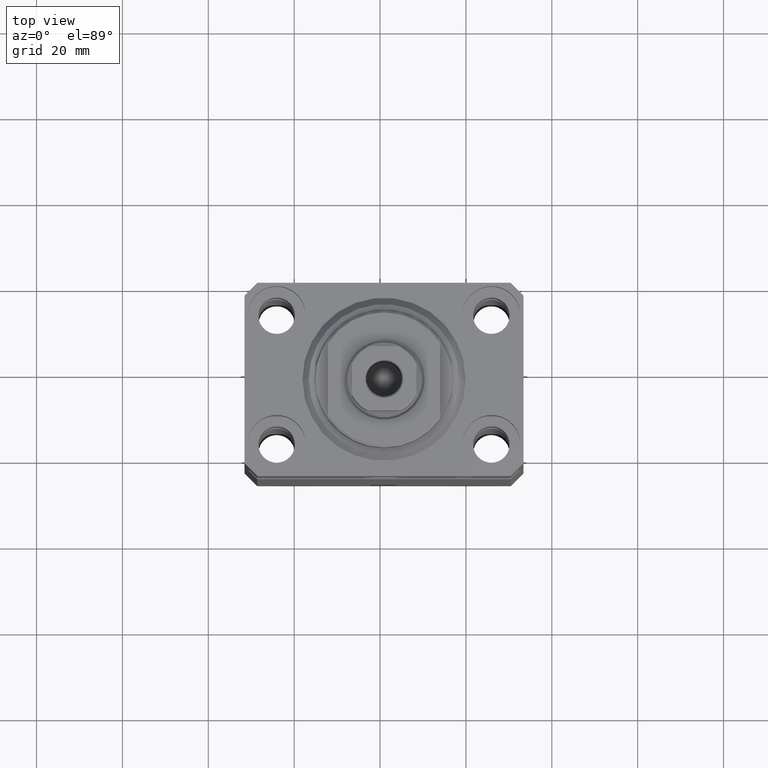
[diagram: clean part render]
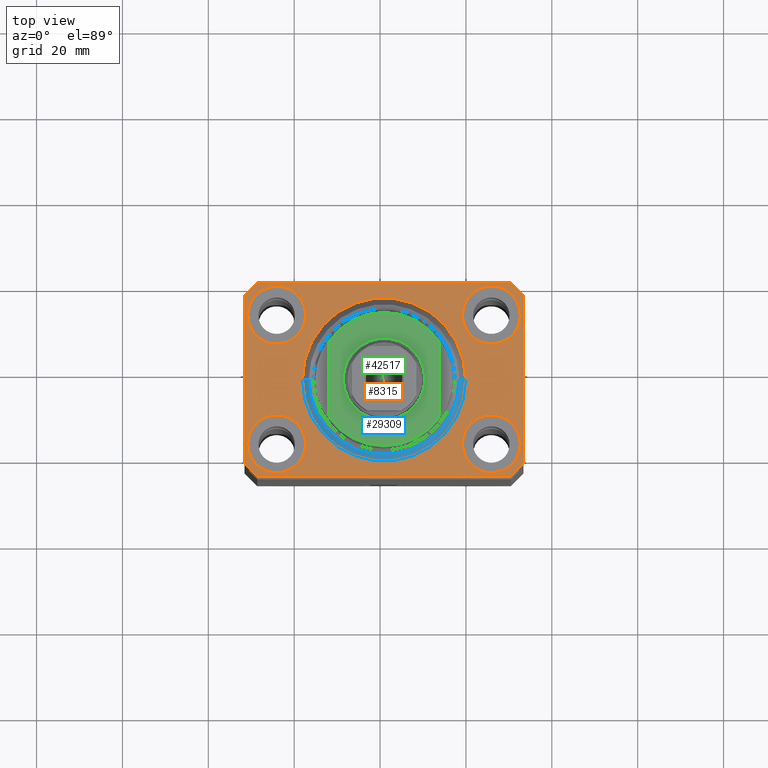
[diagram: same view with three faces highlighted in distinct colors, each labeled with its STEP entity id]
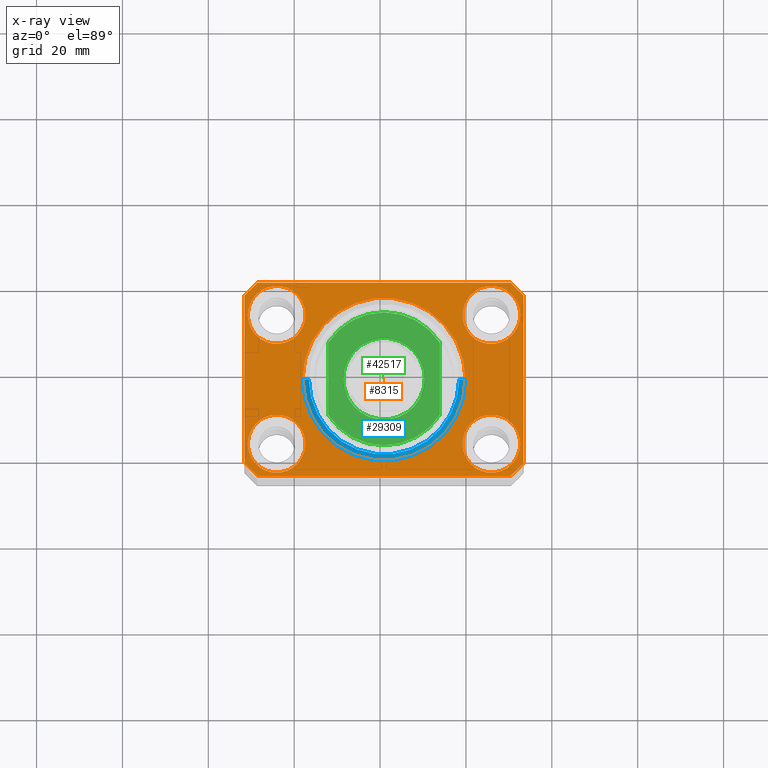
[diagram: x-ray of the same camera — body ghosted, the three highlighted faces saturated]
A machine part, top view with three faces highlighted in distinct colors.
The next image is the same camera in x-ray (body ghosted, the three faces saturated) — at least one of them is partly hidden behind the body in this view.
Their STEP definitions:

[orange] entity #8315 — the highlighted planar face has unit normal (0, 0, 1).
#374 = CARTESIAN_POINT ( 'NONE',  ( 18.25000000004154543, 15.00000000000000888, 0.000000000000000000 ) ) ;
#878 = PLANE ( 'NONE',  #29296 ) ;
#899 = VERTEX_POINT ( 'NONE', #16742 ) ;
#1129 = LINE ( 'NONE', #1579, #42418 ) ;
#1345 = CARTESIAN_POINT ( 'NONE',  ( -25.00000000000000355, -15.00000000000000000, 0.000000000000000000 ) ) ;
#1556 = CARTESIAN_POINT ( 'NONE',  ( 32.49999999999702993, 19.49999999999945999, 0.000000000000000000 ) ) ;
#1579 = CARTESIAN_POINT ( 'NONE',  ( 29.49999999999650413, -22.49999999999949196, 0.000000000000000000 ) ) ;
#1604 = ORIENTED_EDGE ( 'NONE', *, *, #29513, .T. ) ;
#2960 = CIRCLE ( 'NONE', #25236, 6.749999999977465137 ) ;
#3051 = ORIENTED_EDGE ( 'NONE', *, *, #4769, .F. ) ;
#3131 = AXIS2_PLACEMENT_3D ( 'NONE', #27432, #13244, #26976 ) ;
#3363 = ORIENTED_EDGE ( 'NONE', *, *, #42506, .F. ) ;
#3471 = CARTESIAN_POINT ( 'NONE',  ( -32.49999999999650413, -19.49999999999949907, 0.000000000000000000 ) ) ;
#4436 = VERTEX_POINT ( 'NONE', #10994 ) ;
#4668 = VERTEX_POINT ( 'NONE', #12993 ) ;
#4769 = EDGE_CURVE ( 'NONE', #33696, #39309, #29903, .T. ) ;
#5095 = AXIS2_PLACEMENT_3D ( 'NONE', #12685, #19888, #30455 ) ;
#5660 = EDGE_CURVE ( 'NONE', #4436, #15289, #26344, .T. ) ;
#5785 = CARTESIAN_POINT ( 'NONE',  ( 24.99999999999999645, 15.00000000000000888, 0.000000000000000000 ) ) ;
#6330 = CARTESIAN_POINT ( 'NONE',  ( 29.49999999999707967, 22.49999999999951328, 0.000000000000000000 ) ) ;
#6478 = CARTESIAN_POINT ( 'NONE',  ( -29.49999999999650413, 22.49999999999949907, 0.000000000000000000 ) ) ;
#6938 = DIRECTION ( 'NONE',  ( 1.000000000000000000, 0.000000000000000000, 0.000000000000000000 ) ) ;
#6960 = FACE_BOUND ( 'NONE', #21486, .T. ) ;
#7033 = EDGE_CURVE ( 'NONE', #18398, #40301, #12738, .T. ) ;
#7097 = ORIENTED_EDGE ( 'NONE', *, *, #10744, .F. ) ;
#7403 = VERTEX_POINT ( 'NONE', #33160 ) ;
#7624 = FACE_BOUND ( 'NONE', #29023, .T. ) ;
#7796 = CIRCLE ( 'NONE', #22175, 19.00000000000000000 ) ;
#7830 = VECTOR ( 'NONE', #18246, 1000.000000000000000 ) ;
#7873 = VERTEX_POINT ( 'NONE', #6330 ) ;
#7882 = CARTESIAN_POINT ( 'NONE',  ( 31.74999999997746869, -15.00000000000000000, 0.000000000000000000 ) ) ;
#8315 = ADVANCED_FACE ( 'NONE', ( #21130, #31252, #37736, #6960, #7624, #31478 ), #878, .T. ) ;
#8385 = DIRECTION ( 'NONE',  ( -1.000000000000000000, -2.352167425053553784E-16, 0.000000000000000000 ) ) ;
#9293 = DIRECTION ( 'NONE',  ( 0.000000000000000000, 0.000000000000000000, 1.000000000000000000 ) ) ;
#9705 = EDGE_CURVE ( 'NONE', #15289, #4436, #38614, .T. ) ;
#9853 = LINE ( 'NONE', #19996, #15525 ) ;
#10305 = DIRECTION ( 'NONE',  ( 0.000000000000000000, 0.000000000000000000, 1.000000000000000000 ) ) ;
#10325 = CIRCLE ( 'NONE', #3131, 6.750000000022533087 ) ;
#10557 = DIRECTION ( 'NONE',  ( 0.000000000000000000, 0.000000000000000000, 1.000000000000000000 ) ) ;
#10596 = CARTESIAN_POINT ( 'NONE',  ( 25.00000000000000355, -15.00000000000000000, 0.000000000000000000 ) ) ;
#10744 = EDGE_CURVE ( 'NONE', #24683, #21532, #7796, .T. ) ;
#10834 = EDGE_CURVE ( 'NONE', #43496, #39570, #35783, .T. ) ;
#10994 = CARTESIAN_POINT ( 'NONE',  ( -31.75000000004154899, -15.00000000000000000, 0.000000000000000000 ) ) ;
#11122 = ORIENTED_EDGE ( 'NONE', *, *, #10834, .F. ) ;
#12232 = ORIENTED_EDGE ( 'NONE', *, *, #20027, .T. ) ;
#12469 = EDGE_CURVE ( 'NONE', #40301, #14773, #34860, .T. ) ;
#12612 = VERTEX_POINT ( 'NONE', #36192 ) ;
#12685 = CARTESIAN_POINT ( 'NONE',  ( 24.99999999999999645, 15.00000000000000888, 0.000000000000000000 ) ) ;
#12738 = LINE ( 'NONE', #42837, #35690 ) ;
#12993 = CARTESIAN_POINT ( 'NONE',  ( -29.49999999999650413, -22.49999999999949907, 0.000000000000000000 ) ) ;
#13178 = EDGE_LOOP ( 'NONE', ( #16873, #23264 ) ) ;
#13244 = DIRECTION ( 'NONE',  ( 0.000000000000000000, 0.000000000000000000, 1.000000000000000000 ) ) ;
#13506 = CARTESIAN_POINT ( 'NONE',  ( -31.75000000002253842, 15.00000000000000000, 0.000000000000000000 ) ) ;
#13566 = ORIENTED_EDGE ( 'NONE', *, *, #14859, .T. ) ;
#13934 = EDGE_CURVE ( 'NONE', #12612, #36858, #2960, .T. ) ;
#14256 = LINE ( 'NONE', #3471, #24036 ) ;
#14404 = DIRECTION ( 'NONE',  ( 1.000000000000000000, 0.000000000000000000, 0.000000000000000000 ) ) ;
#14591 = DIRECTION ( 'NONE',  ( 1.000000000000000000, 0.000000000000000000, 0.000000000000000000 ) ) ;
#14773 = VERTEX_POINT ( 'NONE', #30623 ) ;
#14859 = EDGE_CURVE ( 'NONE', #16594, #899, #1129, .T. ) ;
#14945 = EDGE_CURVE ( 'NONE', #21532, #24683, #26668, .T. ) ;
#15194 = AXIS2_PLACEMENT_3D ( 'NONE', #10596, #21168, #14404 ) ;
#15256 = DIRECTION ( 'NONE',  ( -0.7071067811865352493, 0.7071067811865597852, 0.000000000000000000 ) ) ;
#15289 = VERTEX_POINT ( 'NONE', #18851 ) ;
#15525 = VECTOR ( 'NONE', #37481, 1000.000000000000000 ) ;
#15536 = EDGE_CURVE ( 'NONE', #7873, #18398, #42964, .T. ) ;
#15886 = DIRECTION ( 'NONE',  ( 1.000000000000000000, 1.176083712526788232E-16, 0.000000000000000000 ) ) ;
#16004 = CARTESIAN_POINT ( 'NONE',  ( 29.49999999999707967, 22.49999999999951328, 0.000000000000000000 ) ) ;
#16376 = CARTESIAN_POINT ( 'NONE',  ( 31.74999999995845101, 15.00000000000000888, 0.000000000000000000 ) ) ;
#16594 = VERTEX_POINT ( 'NONE', #24878 ) ;
#16742 = CARTESIAN_POINT ( 'NONE',  ( 32.49999999999651124, -19.49999999999949196, 0.000000000000000000 ) ) ;
#16873 = ORIENTED_EDGE ( 'NONE', *, *, #9705, .F. ) ;
#17286 = CARTESIAN_POINT ( 'NONE',  ( 0.000000000000000000, 0.000000000000000000, 0.000000000000000000 ) ) ;
#17639 = DIRECTION ( 'NONE',  ( 0.7071067811865474617, -0.7071067811865474617, 0.000000000000000000 ) ) ;
#17668 = EDGE_LOOP ( 'NONE', ( #24082, #27243, #33365, #12232, #29861, #13566, #23195, #1604 ) ) ;
#18246 = DIRECTION ( 'NONE',  ( 0.000000000000000000, -1.000000000000000000, 0.000000000000000000 ) ) ;
#18398 = VERTEX_POINT ( 'NONE', #6478 ) ;
#18530 = EDGE_CURVE ( 'NONE', #39309, #33696, #10325, .T. ) ;
#18579 = AXIS2_PLACEMENT_3D ( 'NONE', #5785, #36343, #19062 ) ;
#18851 = CARTESIAN_POINT ( 'NONE',  ( -18.24999999995846167, -15.00000000000000000, 0.000000000000000000 ) ) ;
#18898 = DIRECTION ( 'NONE',  ( 0.000000000000000000, 0.000000000000000000, 1.000000000000000000 ) ) ;
#19062 = DIRECTION ( 'NONE',  ( 1.000000000000000000, 0.000000000000000000, 0.000000000000000000 ) ) ;
#19888 = DIRECTION ( 'NONE',  ( 0.000000000000000000, 0.000000000000000000, 1.000000000000000000 ) ) ;
#19996 = CARTESIAN_POINT ( 'NONE',  ( 32.49999999999651124, -19.49999999999949196, 0.000000000000000000 ) ) ;
#20027 = EDGE_CURVE ( 'NONE', #14773, #4668, #14256, .T. ) ;
#20330 = VECTOR ( 'NONE', #8385, 1000.000000000000000 ) ;
#20697 = CARTESIAN_POINT ( 'NONE',  ( 0.000000000000000000, 0.000000000000000000, 0.000000000000000000 ) ) ;
#21130 = FACE_BOUND ( 'NONE', #13178, .T. ) ;
#21168 = DIRECTION ( 'NONE',  ( 0.000000000000000000, 0.000000000000000000, 1.000000000000000000 ) ) ;
#21376 = EDGE_CURVE ( 'NONE', #4668, #16594, #33210, .T. ) ;
#21418 = ORIENTED_EDGE ( 'NONE', *, *, #18530, .F. ) ;
#21486 = EDGE_LOOP ( 'NONE', ( #3051, #21418 ) ) ;
#21532 = VERTEX_POINT ( 'NONE', #24853 ) ;
#22175 = AXIS2_PLACEMENT_3D ( 'NONE', #17286, #10305, #6938 ) ;
#22598 = CARTESIAN_POINT ( 'NONE',  ( -32.49999999999650413, 19.49999999999949907, 0.000000000000000000 ) ) ;
#22880 = AXIS2_PLACEMENT_3D ( 'NONE', #40064, #9293, #33355 ) ;
#23195 = ORIENTED_EDGE ( 'NONE', *, *, #24058, .T. ) ;
#23264 = ORIENTED_EDGE ( 'NONE', *, *, #5660, .F. ) ;
#23421 = DIRECTION ( 'NONE',  ( 0.000000000000000000, 0.000000000000000000, 1.000000000000000000 ) ) ;
#23644 = CARTESIAN_POINT ( 'NONE',  ( 25.00000000000000355, -15.00000000000000000, 0.000000000000000000 ) ) ;
#23782 = ORIENTED_EDGE ( 'NONE', *, *, #13934, .F. ) ;
#24036 = VECTOR ( 'NONE', #17639, 1000.000000000000114 ) ;
#24058 = EDGE_CURVE ( 'NONE', #899, #7403, #9853, .T. ) ;
#24082 = ORIENTED_EDGE ( 'NONE', *, *, #15536, .T. ) ;
#24480 = CIRCLE ( 'NONE', #5095, 6.749999999958452790 ) ;
#24683 = VERTEX_POINT ( 'NONE', #34633 ) ;
#24853 = CARTESIAN_POINT ( 'NONE',  ( -19.00000000000000000, 2.326828918379970970E-15, 0.000000000000000000 ) ) ;
#24878 = CARTESIAN_POINT ( 'NONE',  ( 29.49999999999650413, -22.49999999999949196, 0.000000000000000000 ) ) ;
#25236 = AXIS2_PLACEMENT_3D ( 'NONE', #23644, #23421, #32872 ) ;
#25608 = AXIS2_PLACEMENT_3D ( 'NONE', #30992, #31639, #34110 ) ;
#26344 = CIRCLE ( 'NONE', #37785, 6.750000000041541881 ) ;
#26668 = CIRCLE ( 'NONE', #32419, 19.00000000000000000 ) ;
#26976 = DIRECTION ( 'NONE',  ( 1.000000000000000000, 0.000000000000000000, 0.000000000000000000 ) ) ;
#27243 = ORIENTED_EDGE ( 'NONE', *, *, #7033, .T. ) ;
#27432 = CARTESIAN_POINT ( 'NONE',  ( -25.00000000000000355, 15.00000000000000000, 0.000000000000000000 ) ) ;
#27931 = CARTESIAN_POINT ( 'NONE',  ( -32.49999999999650413, 19.49999999999949907, 0.000000000000000000 ) ) ;
#28809 = CARTESIAN_POINT ( 'NONE',  ( 0.000000000000000000, 0.000000000000000000, 0.000000000000000000 ) ) ;
#29023 = EDGE_LOOP ( 'NONE', ( #7097, #33528 ) ) ;
#29179 = CARTESIAN_POINT ( 'NONE',  ( -29.49999999999650413, -22.49999999999949907, 0.000000000000000000 ) ) ;
#29296 = AXIS2_PLACEMENT_3D ( 'NONE', #20697, #10557, #34389 ) ;
#29513 = EDGE_CURVE ( 'NONE', #7403, #7873, #32370, .T. ) ;
#29861 = ORIENTED_EDGE ( 'NONE', *, *, #21376, .T. ) ;
#29903 = CIRCLE ( 'NONE', #25608, 6.750000000022533087 ) ;
#30034 = ORIENTED_EDGE ( 'NONE', *, *, #41340, .F. ) ;
#30043 = CARTESIAN_POINT ( 'NONE',  ( -18.24999999997747224, 15.00000000000000000, 0.000000000000000000 ) ) ;
#30455 = DIRECTION ( 'NONE',  ( 1.000000000000000000, 0.000000000000000000, 0.000000000000000000 ) ) ;
#30623 = CARTESIAN_POINT ( 'NONE',  ( -32.49999999999650413, -19.49999999999949907, 0.000000000000000000 ) ) ;
#30992 = CARTESIAN_POINT ( 'NONE',  ( -25.00000000000000355, 15.00000000000000000, 0.000000000000000000 ) ) ;
#31252 = FACE_BOUND ( 'NONE', #41731, .T. ) ;
#31478 = FACE_OUTER_BOUND ( 'NONE', #17668, .T. ) ;
#31639 = DIRECTION ( 'NONE',  ( 0.000000000000000000, 0.000000000000000000, 1.000000000000000000 ) ) ;
#32220 = EDGE_LOOP ( 'NONE', ( #30034, #11122 ) ) ;
#32370 = LINE ( 'NONE', #1556, #34232 ) ;
#32419 = AXIS2_PLACEMENT_3D ( 'NONE', #28809, #18898, #39091 ) ;
#32872 = DIRECTION ( 'NONE',  ( 1.000000000000000000, 0.000000000000000000, 0.000000000000000000 ) ) ;
#33160 = CARTESIAN_POINT ( 'NONE',  ( 32.49999999999702993, 19.49999999999945999, 0.000000000000000000 ) ) ;
#33210 = LINE ( 'NONE', #29179, #41257 ) ;
#33355 = DIRECTION ( 'NONE',  ( 1.000000000000000000, 0.000000000000000000, 0.000000000000000000 ) ) ;
#33365 = ORIENTED_EDGE ( 'NONE', *, *, #12469, .T. ) ;
#33528 = ORIENTED_EDGE ( 'NONE', *, *, #14945, .F. ) ;
#33696 = VERTEX_POINT ( 'NONE', #30043 ) ;
#34110 = DIRECTION ( 'NONE',  ( 1.000000000000000000, 0.000000000000000000, 0.000000000000000000 ) ) ;
#34232 = VECTOR ( 'NONE', #15256, 1000.000000000000000 ) ;
#34389 = DIRECTION ( 'NONE',  ( 1.000000000000000000, 0.000000000000000000, -0.000000000000000000 ) ) ;
#34586 = CIRCLE ( 'NONE', #15194, 6.749999999977465137 ) ;
#34633 = CARTESIAN_POINT ( 'NONE',  ( 19.00000000000000000, 0.000000000000000000, 0.000000000000000000 ) ) ;
#34860 = LINE ( 'NONE', #27931, #7830 ) ;
#35690 = VECTOR ( 'NONE', #39474, 1000.000000000000114 ) ;
#35783 = CIRCLE ( 'NONE', #18579, 6.749999999958452790 ) ;
#36192 = CARTESIAN_POINT ( 'NONE',  ( 18.25000000002253842, -15.00000000000000000, 0.000000000000000000 ) ) ;
#36343 = DIRECTION ( 'NONE',  ( 0.000000000000000000, 0.000000000000000000, 1.000000000000000000 ) ) ;
#36858 = VERTEX_POINT ( 'NONE', #7882 ) ;
#37481 = DIRECTION ( 'NONE',  ( 1.334402673828349134E-14, 1.000000000000000000, 0.000000000000000000 ) ) ;
#37736 = FACE_BOUND ( 'NONE', #32220, .T. ) ;
#37785 = AXIS2_PLACEMENT_3D ( 'NONE', #1345, #38405, #14591 ) ;
#38405 = DIRECTION ( 'NONE',  ( 0.000000000000000000, 0.000000000000000000, 1.000000000000000000 ) ) ;
#38614 = CIRCLE ( 'NONE', #22880, 6.750000000041541881 ) ;
#39091 = DIRECTION ( 'NONE',  ( 1.000000000000000000, 0.000000000000000000, 0.000000000000000000 ) ) ;
#39309 = VERTEX_POINT ( 'NONE', #13506 ) ;
#39474 = DIRECTION ( 'NONE',  ( -0.7071067811865474617, -0.7071067811865474617, 0.000000000000000000 ) ) ;
#39570 = VERTEX_POINT ( 'NONE', #16376 ) ;
#40064 = CARTESIAN_POINT ( 'NONE',  ( -25.00000000000000355, -15.00000000000000000, 0.000000000000000000 ) ) ;
#40301 = VERTEX_POINT ( 'NONE', #22598 ) ;
#41257 = VECTOR ( 'NONE', #15886, 1000.000000000000000 ) ;
#41340 = EDGE_CURVE ( 'NONE', #39570, #43496, #24480, .T. ) ;
#41731 = EDGE_LOOP ( 'NONE', ( #3363, #23782 ) ) ;
#42005 = DIRECTION ( 'NONE',  ( 0.7071067811865483499, 0.7071067811865466846, 0.000000000000000000 ) ) ;
#42418 = VECTOR ( 'NONE', #42005, 1000.000000000000000 ) ;
#42506 = EDGE_CURVE ( 'NONE', #36858, #12612, #34586, .T. ) ;
#42837 = CARTESIAN_POINT ( 'NONE',  ( -29.49999999999650413, 22.49999999999949907, 0.000000000000000000 ) ) ;
#42964 = LINE ( 'NONE', #16004, #20330 ) ;
#43496 = VERTEX_POINT ( 'NONE', #374 ) ;

[blue] entity #29309 — the highlighted conical surface has half-angle 45 deg.
#347 = CARTESIAN_POINT ( 'NONE',  ( -17.49999999999999645, 2.234980408443919215E-15, 0.000000000000000000 ) ) ;
#540 = DIRECTION ( 'NONE',  ( -0.7071067811865483499, 8.659560562354942719E-17, 0.7071067811865467956 ) ) ;
#1919 = AXIS2_PLACEMENT_3D ( 'NONE', #6077, #12827, #2703 ) ;
#2699 = EDGE_CURVE ( 'NONE', #22270, #40421, #28393, .T. ) ;
#2703 = DIRECTION ( 'NONE',  ( 1.000000000000000000, 0.000000000000000000, 0.000000000000000000 ) ) ;
#3321 = CARTESIAN_POINT ( 'NONE',  ( 19.00000000000000000, 0.000000000000000000, 1.500000000000001332 ) ) ;
#4101 = CARTESIAN_POINT ( 'NONE',  ( 19.00000000000000000, 2.326828918379970970E-15, 1.500000000000001332 ) ) ;
#6077 = CARTESIAN_POINT ( 'NONE',  ( 0.000000000000000000, 0.000000000000000000, 1.500000000000001332 ) ) ;
#8989 = AXIS2_PLACEMENT_3D ( 'NONE', #31572, #42077, #10649 ) ;
#10649 = DIRECTION ( 'NONE',  ( 1.000000000000000000, 0.000000000000000000, 0.000000000000000000 ) ) ;
#12827 = DIRECTION ( 'NONE',  ( -0.000000000000000000, -0.000000000000000000, 1.000000000000000000 ) ) ;
#14322 = VERTEX_POINT ( 'NONE', #347 ) ;
#16959 = CARTESIAN_POINT ( 'NONE',  ( -19.00000000000000000, 2.326828918379970970E-15, 1.500000000000001332 ) ) ;
#17160 = CARTESIAN_POINT ( 'NONE',  ( 0.000000000000000000, 0.000000000000000000, 0.000000000000000000 ) ) ;
#17273 = LINE ( 'NONE', #3321, #20583 ) ;
#18277 = ORIENTED_EDGE ( 'NONE', *, *, #35624, .F. ) ;
#19058 = CARTESIAN_POINT ( 'NONE',  ( -19.00000000000000000, 0.000000000000000000, 1.500000000000001332 ) ) ;
#20583 = VECTOR ( 'NONE', #33698, 1000.000000000000000 ) ;
#21230 = LINE ( 'NONE', #16959, #38603 ) ;
#21315 = CONICAL_SURFACE ( 'NONE', #1919, 19.00000000000000000, 0.7853981633974492782 ) ;
#21883 = ORIENTED_EDGE ( 'NONE', *, *, #24088, .T. ) ;
#22270 = VERTEX_POINT ( 'NONE', #19058 ) ;
#24088 = EDGE_CURVE ( 'NONE', #28245, #40421, #17273, .T. ) ;
#24270 = EDGE_LOOP ( 'NONE', ( #25895, #18277, #21883, #42238 ) ) ;
#25895 = ORIENTED_EDGE ( 'NONE', *, *, #32915, .F. ) ;
#28245 = VERTEX_POINT ( 'NONE', #37784 ) ;
#28393 = CIRCLE ( 'NONE', #8989, 19.00000000000000000 ) ;
#29309 = ADVANCED_FACE ( 'NONE', ( #36422 ), #21315, .T. ) ;
#31572 = CARTESIAN_POINT ( 'NONE',  ( 0.000000000000000000, 0.000000000000000000, 1.500000000000001332 ) ) ;
#32915 = EDGE_CURVE ( 'NONE', #14322, #22270, #21230, .T. ) ;
#33698 = DIRECTION ( 'NONE',  ( 0.7071067811865483499, 0.000000000000000000, 0.7071067811865467956 ) ) ;
#34429 = CIRCLE ( 'NONE', #42992, 17.49999999999999645 ) ;
#35624 = EDGE_CURVE ( 'NONE', #28245, #14322, #34429, .T. ) ;
#36422 = FACE_OUTER_BOUND ( 'NONE', #24270, .T. ) ;
#37784 = CARTESIAN_POINT ( 'NONE',  ( 17.49999999999999645, 0.000000000000000000, 0.000000000000000000 ) ) ;
#38603 = VECTOR ( 'NONE', #540, 1000.000000000000000 ) ;
#40291 = DIRECTION ( 'NONE',  ( 1.000000000000000000, 0.000000000000000000, 0.000000000000000000 ) ) ;
#40421 = VERTEX_POINT ( 'NONE', #4101 ) ;
#40725 = DIRECTION ( 'NONE',  ( -0.000000000000000000, -0.000000000000000000, -1.000000000000000000 ) ) ;
#42077 = DIRECTION ( 'NONE',  ( -0.000000000000000000, -0.000000000000000000, 1.000000000000000000 ) ) ;
#42238 = ORIENTED_EDGE ( 'NONE', *, *, #2699, .F. ) ;
#42992 = AXIS2_PLACEMENT_3D ( 'NONE', #17160, #40725, #40291 ) ;

[green] entity #42517 — the highlighted planar face has unit normal (0, 0, 1).
#3590 = VERTEX_POINT ( 'NONE', #42210 ) ;
#3835 = CARTESIAN_POINT ( 'NONE',  ( 0.000000000000000000, 0.000000000000000000, -6.500000000000000000 ) ) ;
#3957 = DIRECTION ( 'NONE',  ( -1.000000000000000000, 0.000000000000000000, 0.000000000000000000 ) ) ;
#6314 = ORIENTED_EDGE ( 'NONE', *, *, #16984, .T. ) ;
#7003 = CIRCLE ( 'NONE', #17078, 9.500000000000001776 ) ;
#7279 = LINE ( 'NONE', #21002, #15591 ) ;
#7306 = CARTESIAN_POINT ( 'NONE',  ( 13.00000000000000000, 8.440971508067137918, -6.500000000000000000 ) ) ;
#8045 = CARTESIAN_POINT ( 'NONE',  ( -13.00000000000000000, -8.440971508067137918, -6.500000000000000000 ) ) ;
#8235 = EDGE_CURVE ( 'NONE', #3590, #43772, #7003, .T. ) ;
#12614 = ORIENTED_EDGE ( 'NONE', *, *, #31934, .T. ) ;
#12984 = DIRECTION ( 'NONE',  ( -1.000000000000000000, 0.000000000000000000, 0.000000000000000000 ) ) ;
#13704 = DIRECTION ( 'NONE',  ( -1.000000000000000000, 0.000000000000000000, 0.000000000000000000 ) ) ;
#15591 = VECTOR ( 'NONE', #20341, 1000.000000000000000 ) ;
#16507 = CARTESIAN_POINT ( 'NONE',  ( 13.00000000000000000, -8.440971508067137918, -6.500000000000000000 ) ) ;
#16984 = EDGE_CURVE ( 'NONE', #23546, #24311, #42582, .T. ) ;
#17078 = AXIS2_PLACEMENT_3D ( 'NONE', #27440, #29982, #13704 ) ;
#17712 = CIRCLE ( 'NONE', #27767, 9.500000000000001776 ) ;
#17774 = VERTEX_POINT ( 'NONE', #7306 ) ;
#18978 = DIRECTION ( 'NONE',  ( -1.000000000000000000, 0.000000000000000000, 0.000000000000000000 ) ) ;
#19737 = EDGE_CURVE ( 'NONE', #24626, #17774, #29066, .T. ) ;
#20341 = DIRECTION ( 'NONE',  ( -0.000000000000000000, -1.000000000000000000, -0.000000000000000000 ) ) ;
#20422 = AXIS2_PLACEMENT_3D ( 'NONE', #34759, #28266, #3957 ) ;
#21002 = CARTESIAN_POINT ( 'NONE',  ( -13.00000000000000000, -43.08131845707602992, -6.500000000000000000 ) ) ;
#21706 = CARTESIAN_POINT ( 'NONE',  ( 13.00000000000000000, -43.08131845707602992, -6.500000000000000000 ) ) ;
#23248 = AXIS2_PLACEMENT_3D ( 'NONE', #39610, #39172, #18978 ) ;
#23533 = VECTOR ( 'NONE', #34719, 1000.000000000000000 ) ;
#23546 = VERTEX_POINT ( 'NONE', #16507 ) ;
#23741 = ORIENTED_EDGE ( 'NONE', *, *, #19737, .T. ) ;
#24085 = EDGE_LOOP ( 'NONE', ( #23741, #12614, #6314, #43779 ) ) ;
#24311 = VERTEX_POINT ( 'NONE', #8045 ) ;
#24316 = FACE_OUTER_BOUND ( 'NONE', #24085, .T. ) ;
#24626 = VERTEX_POINT ( 'NONE', #43832 ) ;
#26706 = AXIS2_PLACEMENT_3D ( 'NONE', #3835, #41580, #34855 ) ;
#26716 = DIRECTION ( 'NONE',  ( -0.000000000000000000, -0.000000000000000000, 1.000000000000000000 ) ) ;
#26935 = EDGE_CURVE ( 'NONE', #24626, #24311, #7279, .T. ) ;
#27440 = CARTESIAN_POINT ( 'NONE',  ( 0.000000000000000000, 0.000000000000000000, -6.500000000000000000 ) ) ;
#27767 = AXIS2_PLACEMENT_3D ( 'NONE', #30528, #26716, #12984 ) ;
#28142 = FACE_BOUND ( 'NONE', #28959, .T. ) ;
#28266 = DIRECTION ( 'NONE',  ( 0.000000000000000000, 0.000000000000000000, -1.000000000000000000 ) ) ;
#28802 = EDGE_CURVE ( 'NONE', #43772, #3590, #17712, .T. ) ;
#28959 = EDGE_LOOP ( 'NONE', ( #43295, #29357 ) ) ;
#29066 = CIRCLE ( 'NONE', #20422, 15.50000000000003730 ) ;
#29357 = ORIENTED_EDGE ( 'NONE', *, *, #28802, .T. ) ;
#29982 = DIRECTION ( 'NONE',  ( -0.000000000000000000, -0.000000000000000000, 1.000000000000000000 ) ) ;
#30528 = CARTESIAN_POINT ( 'NONE',  ( 0.000000000000000000, 0.000000000000000000, -6.500000000000000000 ) ) ;
#31934 = EDGE_CURVE ( 'NONE', #17774, #23546, #41878, .T. ) ;
#34719 = DIRECTION ( 'NONE',  ( 0.000000000000000000, -1.000000000000000000, -0.000000000000000000 ) ) ;
#34759 = CARTESIAN_POINT ( 'NONE',  ( 0.000000000000000000, 0.000000000000000000, -6.500000000000000000 ) ) ;
#34855 = DIRECTION ( 'NONE',  ( -1.000000000000000000, 0.000000000000000000, -0.000000000000000000 ) ) ;
#37997 = PLANE ( 'NONE',  #26706 ) ;
#39172 = DIRECTION ( 'NONE',  ( 0.000000000000000000, 0.000000000000000000, -1.000000000000000000 ) ) ;
#39610 = CARTESIAN_POINT ( 'NONE',  ( 0.000000000000000000, 0.000000000000000000, -6.500000000000000000 ) ) ;
#41580 = DIRECTION ( 'NONE',  ( 0.000000000000000000, 0.000000000000000000, -1.000000000000000000 ) ) ;
#41878 = LINE ( 'NONE', #21706, #23533 ) ;
#42093 = CARTESIAN_POINT ( 'NONE',  ( 9.500000000000001776, 1.163414459189985880E-15, -6.500000000000000000 ) ) ;
#42210 = CARTESIAN_POINT ( 'NONE',  ( -9.500000000000001776, 0.000000000000000000, -6.500000000000000000 ) ) ;
#42517 = ADVANCED_FACE ( 'NONE', ( #28142, #24316 ), #37997, .T. ) ;
#42582 = CIRCLE ( 'NONE', #23248, 15.50000000000003730 ) ;
#43295 = ORIENTED_EDGE ( 'NONE', *, *, #8235, .T. ) ;
#43772 = VERTEX_POINT ( 'NONE', #42093 ) ;
#43779 = ORIENTED_EDGE ( 'NONE', *, *, #26935, .F. ) ;
#43832 = CARTESIAN_POINT ( 'NONE',  ( -13.00000000000000000, 8.440971508067137918, -6.500000000000000000 ) ) ;